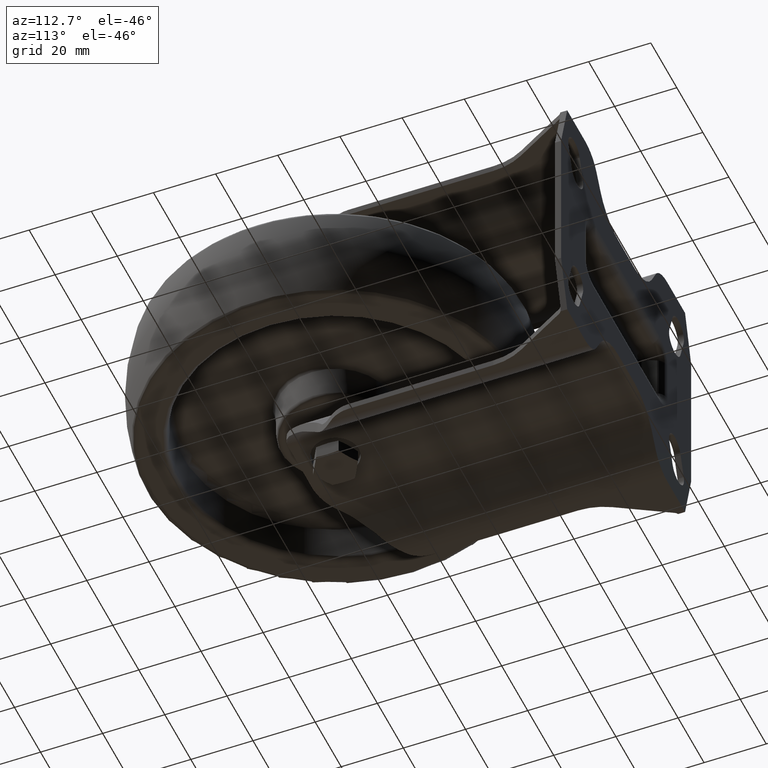
[diagram: clean part render]
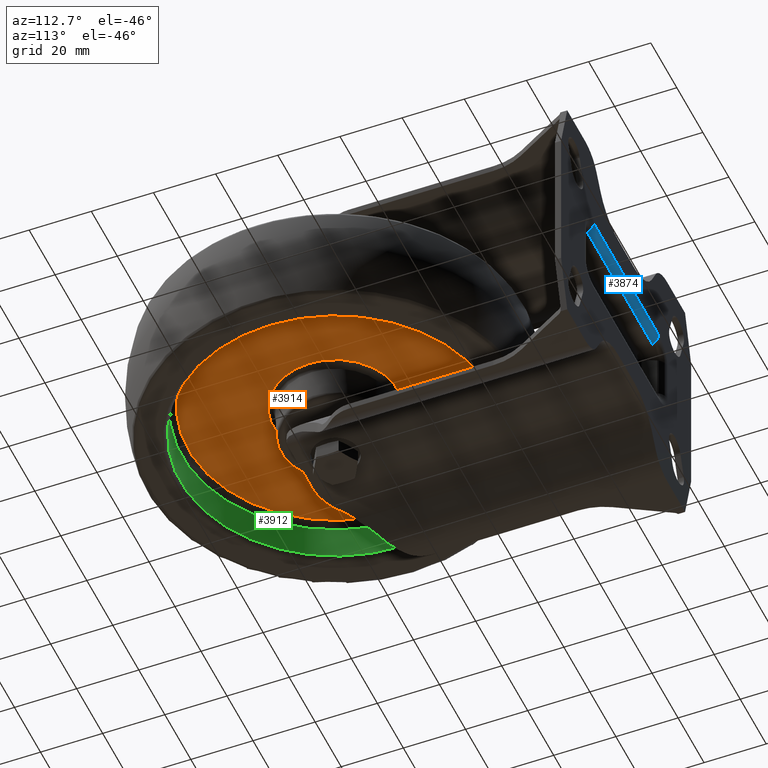
[diagram: same view with three faces highlighted in distinct colors, each labeled with its STEP entity id]
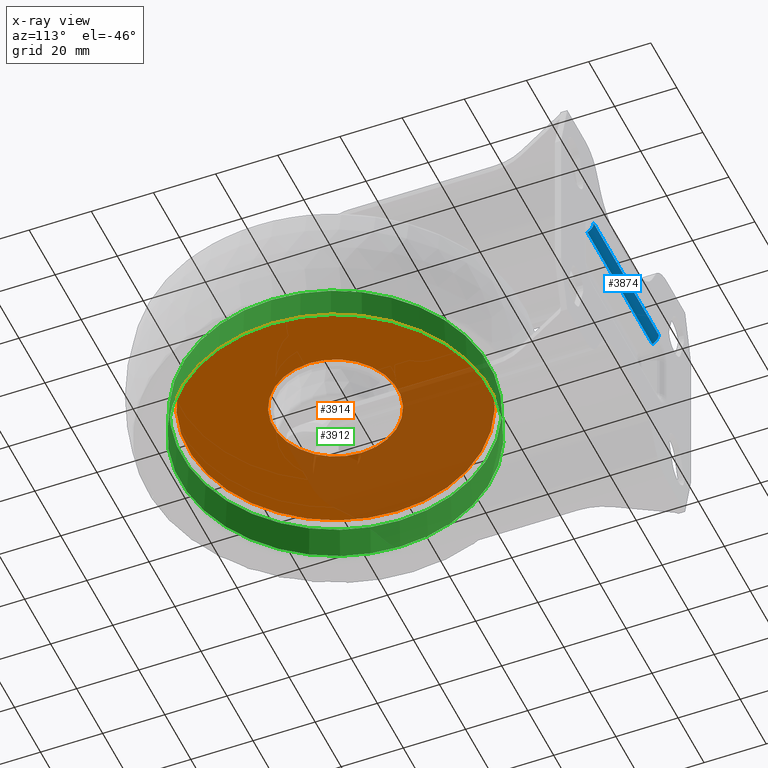
[diagram: x-ray of the same camera — body ghosted, the three highlighted faces saturated]
A machine part, auxiliary view with three faces highlighted in distinct colors.
The next image is the same camera in x-ray (body ghosted, the three faces saturated) — at least one of them is partly hidden behind the body in this view.
Their STEP definitions:

[orange] entity #3914 — the highlighted conical surface has half-angle 88 deg.
#520=LINE('',#7097,#788);
#788=VECTOR('',#5505,47.2774853659318);
#1080=FACE_OUTER_BOUND('',#1325,.T.);
#1325=EDGE_LOOP('',(#3634,#3635,#3636,#3637));
#1506=CIRCLE('',#4369,47.2774853659318);
#1507=CIRCLE('',#4371,20.0330560728675);
#1925=VERTEX_POINT('',#7092);
#1926=VERTEX_POINT('',#7096);
#2495=EDGE_CURVE('',#1925,#1925,#1506,.T.);
#2496=EDGE_CURVE('',#1925,#1926,#520,.T.);
#2497=EDGE_CURVE('',#1926,#1926,#1507,.T.);
#3634=ORIENTED_EDGE('',*,*,#2495,.F.);
#3635=ORIENTED_EDGE('',*,*,#2496,.T.);
#3636=ORIENTED_EDGE('',*,*,#2497,.T.);
#3637=ORIENTED_EDGE('',*,*,#2496,.F.);
#3695=CONICAL_SURFACE('',#4370,47.2774853659318,1.53588974175501);
#3914=ADVANCED_FACE('',(#1080),#3695,.T.);
#4369=AXIS2_PLACEMENT_3D('',#7094,#5501,#5502);
#4370=AXIS2_PLACEMENT_3D('',#7095,#5503,#5504);
#4371=AXIS2_PLACEMENT_3D('',#7098,#5506,#5507);
#5501=DIRECTION('center_axis',(0.,0.,1.));
#5502=DIRECTION('ref_axis',(1.,0.,0.));
#5503=DIRECTION('center_axis',(0.,0.,1.));
#5504=DIRECTION('ref_axis',(1.,0.,0.));
#5505=DIRECTION('',(0.999390827019096,1.22390077740616E-16,-0.0348994967025011));
#5506=DIRECTION('center_axis',(0.,0.,1.));
#5507=DIRECTION('ref_axis',(1.,0.,0.));
#7092=CARTESIAN_POINT('',(-47.2774853659318,-5.78982211251242E-15,-3.09903383138683));
#7094=CARTESIAN_POINT('Origin',(0.,0.,-3.09903383138683));
#7095=CARTESIAN_POINT('Origin',(0.,0.,-3.09903383138683));
#7096=CARTESIAN_POINT('',(-20.0330560728675,-2.45334179967766E-15,-4.05043026666415));
#7097=CARTESIAN_POINT('',(-47.2774853659318,-5.78982211251242E-15,-3.09903383138683));
#7098=CARTESIAN_POINT('Origin',(0.,0.,-4.05043026666414));

[blue] entity #3874 — the highlighted cylindrical surface (edge-blend (fillet) strip) has radius 3.5 mm, axis along (-1, 0, 0).
#444=LINE('',#6752,#712);
#495=LINE('',#6899,#763);
#712=VECTOR('',#5105,1000.);
#763=VECTOR('',#5298,1000.);
#854=CYLINDRICAL_SURFACE('',#4277,3.5);
#1040=FACE_OUTER_BOUND('',#1281,.T.);
#1281=EDGE_LOOP('',(#3466,#3467,#3468,#3469));
#1450=CIRCLE('',#4278,3.5);
#1451=CIRCLE('',#4279,3.5);
#1862=VERTEX_POINT('',#6749);
#1863=VERTEX_POINT('',#6751);
#1879=VERTEX_POINT('',#6895);
#1880=VERTEX_POINT('',#6897);
#2347=EDGE_CURVE('',#1862,#1863,#444,.T.);
#2414=EDGE_CURVE('',#1879,#1863,#1450,.T.);
#2415=EDGE_CURVE('',#1880,#1862,#1451,.T.);
#2416=EDGE_CURVE('',#1880,#1879,#495,.T.);
#3466=ORIENTED_EDGE('',*,*,#2414,.T.);
#3467=ORIENTED_EDGE('',*,*,#2347,.F.);
#3468=ORIENTED_EDGE('',*,*,#2415,.F.);
#3469=ORIENTED_EDGE('',*,*,#2416,.T.);
#3874=ADVANCED_FACE('',(#1040),#854,.T.);
#4277=AXIS2_PLACEMENT_3D('',#6894,#5292,#5293);
#4278=AXIS2_PLACEMENT_3D('',#6896,#5294,#5295);
#4279=AXIS2_PLACEMENT_3D('',#6898,#5296,#5297);
#5105=DIRECTION('',(-1.,0.,0.));
#5292=DIRECTION('center_axis',(-1.,0.,0.));
#5293=DIRECTION('ref_axis',(0.,0.,1.));
#5294=DIRECTION('center_axis',(1.,0.,0.));
#5295=DIRECTION('ref_axis',(0.,0.,-1.));
#5296=DIRECTION('center_axis',(1.,0.,0.));
#5297=DIRECTION('ref_axis',(0.,0.,-1.));
#5298=DIRECTION('',(-1.,0.,0.));
#6749=CARTESIAN_POINT('',(25.,93.5,13.7297459128262));
#6751=CARTESIAN_POINT('',(-25.,93.5,13.7297459128262));
#6752=CARTESIAN_POINT('',(25.,93.5,13.7297459128262));
#6894=CARTESIAN_POINT('Origin',(25.,90.,13.7297459128262));
#6895=CARTESIAN_POINT('',(-25.,91.4791639160925,10.557668658198));
#6896=CARTESIAN_POINT('Origin',(-25.,90.,13.7297459128262));
#6897=CARTESIAN_POINT('',(25.,91.4791639160925,10.557668658198));
#6898=CARTESIAN_POINT('Origin',(25.,90.,13.7297459128262));
#6899=CARTESIAN_POINT('',(25.,91.4791639160925,10.557668658198));

[green] entity #3912 — the highlighted conical surface has half-angle 3 deg.
#519=LINE('',#7090,#787);
#787=VECTOR('',#5496,49.9006700639206);
#1078=FACE_OUTER_BOUND('',#1323,.T.);
#1323=EDGE_LOOP('',(#3623,#3624,#3625,#3626,#3627,#3628));
#1501=CIRCLE('',#4362,49.9006700639206);
#1502=CIRCLE('',#4363,49.9006700639206);
#1503=CIRCLE('',#4365,49.3445434288459);
#1504=CIRCLE('',#4366,49.3445434288459);
#1921=VERTEX_POINT('',#7080);
#1922=VERTEX_POINT('',#7082);
#1923=VERTEX_POINT('',#7086);
#1924=VERTEX_POINT('',#7087);
#2489=EDGE_CURVE('',#1921,#1922,#1501,.T.);
#2490=EDGE_CURVE('',#1922,#1921,#1502,.T.);
#2491=EDGE_CURVE('',#1923,#1924,#1503,.T.);
#2492=EDGE_CURVE('',#1924,#1923,#1504,.T.);
#2493=EDGE_CURVE('',#1923,#1922,#519,.T.);
#3623=ORIENTED_EDGE('',*,*,#2491,.T.);
#3624=ORIENTED_EDGE('',*,*,#2492,.T.);
#3625=ORIENTED_EDGE('',*,*,#2493,.T.);
#3626=ORIENTED_EDGE('',*,*,#2489,.F.);
#3627=ORIENTED_EDGE('',*,*,#2490,.F.);
#3628=ORIENTED_EDGE('',*,*,#2493,.F.);
#3694=CONICAL_SURFACE('',#4364,49.9006700639206,0.0523598775598294);
#3912=ADVANCED_FACE('',(#1078),#3694,.F.);
#4362=AXIS2_PLACEMENT_3D('',#7083,#5486,#5487);
#4363=AXIS2_PLACEMENT_3D('',#7084,#5488,#5489);
#4364=AXIS2_PLACEMENT_3D('',#7085,#5490,#5491);
#4365=AXIS2_PLACEMENT_3D('',#7088,#5492,#5493);
#4366=AXIS2_PLACEMENT_3D('',#7089,#5494,#5495);
#5486=DIRECTION('center_axis',(0.,0.,1.));
#5487=DIRECTION('ref_axis',(1.,0.,0.));
#5488=DIRECTION('center_axis',(0.,0.,1.));
#5489=DIRECTION('ref_axis',(1.,0.,0.));
#5490=DIRECTION('center_axis',(0.,0.,-1.));
#5491=DIRECTION('ref_axis',(-1.,0.,0.));
#5492=DIRECTION('center_axis',(0.,0.,1.));
#5493=DIRECTION('ref_axis',(1.,0.,0.));
#5494=DIRECTION('center_axis',(0.,0.,1.));
#5495=DIRECTION('ref_axis',(1.,0.,0.));
#5496=DIRECTION('',(0.0523359562429433,-6.40930612932365E-18,-0.998629534754574));
#7080=CARTESIAN_POINT('',(-49.9006700639206,-6.11106958690885E-15,-15.6046719124859));
#7082=CARTESIAN_POINT('',(49.9006700639206,0.,-15.6046719124859));
#7083=CARTESIAN_POINT('Origin',(0.,0.,-15.6046719124859));
#7084=CARTESIAN_POINT('Origin',(0.,0.,-15.6046719124859));
#7085=CARTESIAN_POINT('Origin',(0.,0.,-15.6046719124859));
#7086=CARTESIAN_POINT('',(49.3445434288459,0.,-4.99314357293913));
#7087=CARTESIAN_POINT('',(-49.3445434288459,-6.04296371655237E-15,-4.99314357293913));
#7088=CARTESIAN_POINT('Origin',(0.,0.,-4.99314357293913));
#7089=CARTESIAN_POINT('Origin',(0.,0.,-4.99314357293913));
#7090=CARTESIAN_POINT('',(49.9006700639206,-6.11106958690885E-15,-15.6046719124859));